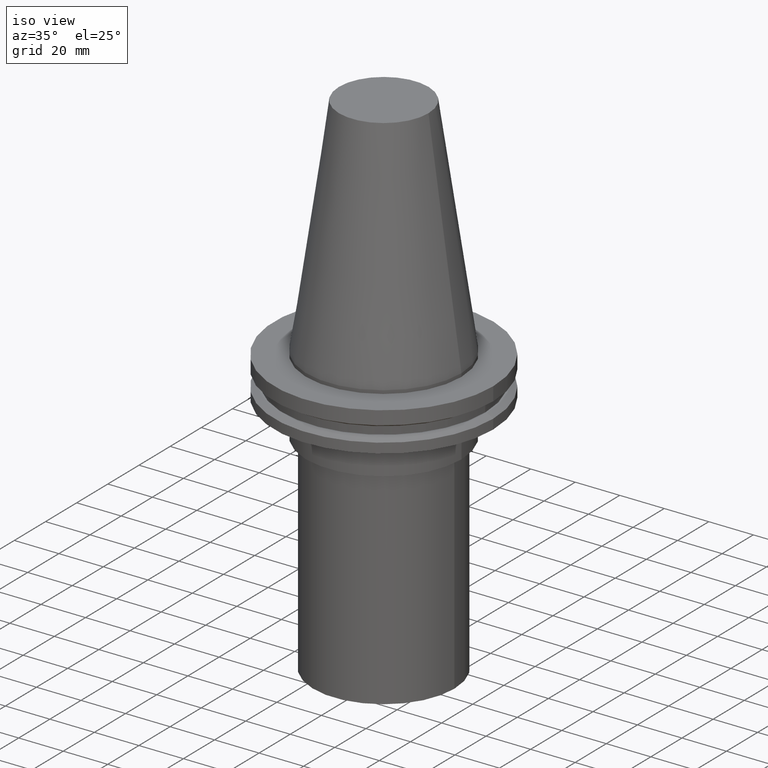
[diagram: clean part render]
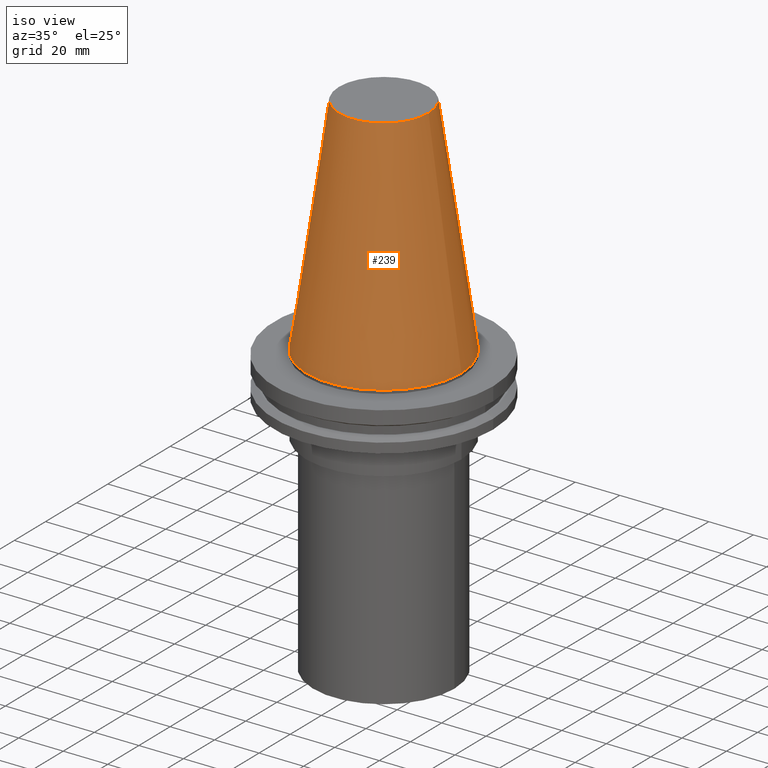
[diagram: same view with one face highlighted and labeled with its STEP entity id]
A machine part, iso view. The second image highlights one B-rep face of the part: STEP entity #239.
In plain terms, the highlighted conical surface has half-angle 8.297 deg.
Its self-contained STEP definition (entity closure, byte-faithful):
#4 = CONICAL_SURFACE ( 'NONE', #206, 34.92499999999999005, 0.1448138465474119452 ) ;
#17 = ORIENTED_EDGE ( 'NONE', *, *, #205, .T. ) ;
#22 = AXIS2_PLACEMENT_3D ( 'NONE', #50, #365, #24 ) ;
#24 = DIRECTION ( 'NONE',  ( 1.000000000000000000, 0.000000000000000000, 0.000000000000000000 ) ) ;
#28 = DIRECTION ( 'NONE',  ( -1.000000000000000000, 0.000000000000000000, 0.000000000000000000 ) ) ;
#37 = CARTESIAN_POINT ( 'NONE',  ( 20.10819343178871321, 0.000000000000000000, 101.5999999999999801 ) ) ;
#47 = DIRECTION ( 'NONE',  ( 0.000000000000000000, 0.000000000000000000, -1.000000000000000000 ) ) ;
#50 = CARTESIAN_POINT ( 'NONE',  ( 0.000000000000000000, 0.000000000000000000, 0.000000000000000000 ) ) ;
#80 = EDGE_LOOP ( 'NONE', ( #97 ) ) ;
#83 = FACE_OUTER_BOUND ( 'NONE', #200, .T. ) ;
#97 = ORIENTED_EDGE ( 'NONE', *, *, #388, .F. ) ;
#101 = DIRECTION ( 'NONE',  ( -0.000000000000000000, -0.000000000000000000, 1.000000000000000000 ) ) ;
#118 = FACE_BOUND ( 'NONE', #80, .T. ) ;
#133 = CARTESIAN_POINT ( 'NONE',  ( 0.000000000000000000, 0.000000000000000000, 101.5999999999999801 ) ) ;
#139 = VERTEX_POINT ( 'NONE', #369 ) ;
#182 = DIRECTION ( 'NONE',  ( 1.000000000000000000, 0.000000000000000000, 0.000000000000000000 ) ) ;
#200 = EDGE_LOOP ( 'NONE', ( #17 ) ) ;
#205 = EDGE_CURVE ( 'NONE', #139, #139, #266, .T. ) ;
#206 = AXIS2_PLACEMENT_3D ( 'NONE', #207, #47, #28 ) ;
#207 = CARTESIAN_POINT ( 'NONE',  ( 0.000000000000000000, 0.000000000000000000, 0.000000000000000000 ) ) ;
#232 = AXIS2_PLACEMENT_3D ( 'NONE', #133, #101, #182 ) ;
#239 = ADVANCED_FACE ( 'NONE', ( #118, #83 ), #4, .T. ) ;
#266 = CIRCLE ( 'NONE', #22, 34.92499999999999005 ) ;
#341 = VERTEX_POINT ( 'NONE', #37 ) ;
#365 = DIRECTION ( 'NONE',  ( -0.000000000000000000, -0.000000000000000000, 1.000000000000000000 ) ) ;
#366 = CIRCLE ( 'NONE', #232, 20.10819343178871321 ) ;
#369 = CARTESIAN_POINT ( 'NONE',  ( 34.92499999999999005, 0.000000000000000000, 0.000000000000000000 ) ) ;
#388 = EDGE_CURVE ( 'NONE', #341, #341, #366, .T. ) ;